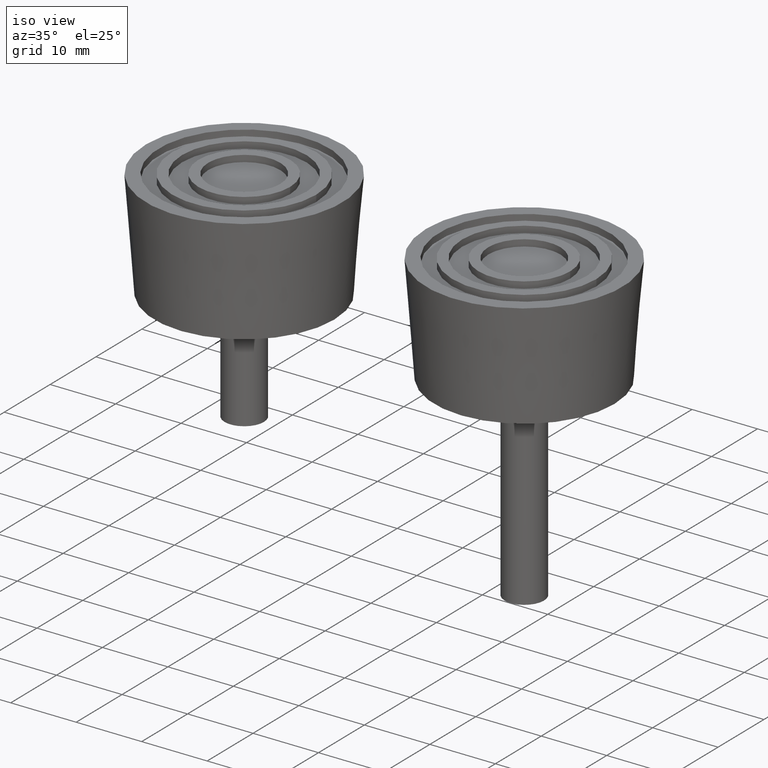
[diagram: clean part render]
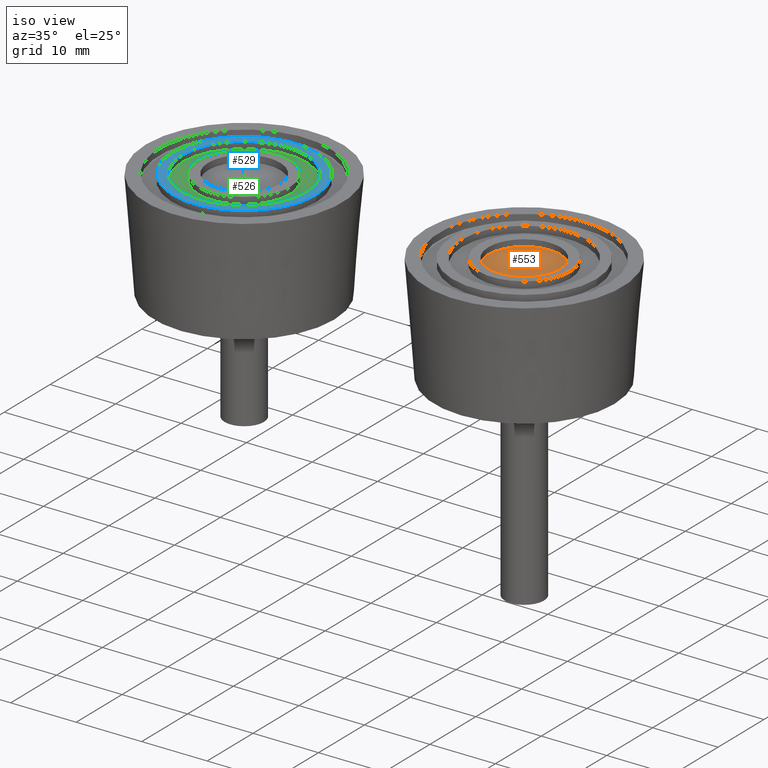
[diagram: same view with three faces highlighted in distinct colors, each labeled with its STEP entity id]
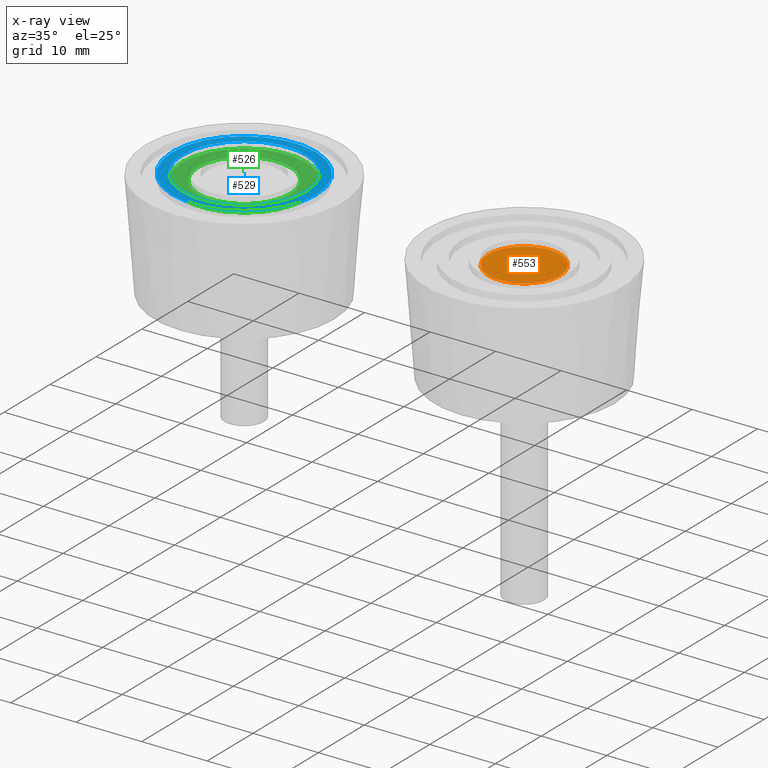
[diagram: x-ray of the same camera — body ghosted, the three highlighted faces saturated]
A machine part, iso view with three faces highlighted in distinct colors.
The next image is the same camera in x-ray (body ghosted, the three faces saturated) — at least one of them is partly hidden behind the body in this view.
Their STEP definitions:

[orange] entity #553 — the highlighted planar face has unit normal (0, -0, 1).
#50=PLANE('',#654);
#145=FACE_OUTER_BOUND('',#236,.T.);
#236=EDGE_LOOP('',(#476));
#292=CIRCLE('',#652,5.5);
#340=VERTEX_POINT('',#1006);
#388=EDGE_CURVE('',#340,#340,#292,.T.);
#476=ORIENTED_EDGE('',*,*,#388,.F.);
#553=ADVANCED_FACE('',(#145),#50,.T.);
#652=AXIS2_PLACEMENT_3D('',#1007,#846,#847);
#654=AXIS2_PLACEMENT_3D('',#1010,#850,#851);
#846=DIRECTION('center_axis',(0.,0.,-1.));
#847=DIRECTION('ref_axis',(-1.,0.,0.));
#850=DIRECTION('center_axis',(0.,0.,1.));
#851=DIRECTION('ref_axis',(1.,0.,0.));
#1006=CARTESIAN_POINT('',(5.5,6.73555739531044E-16,15.5));
#1007=CARTESIAN_POINT('Origin',(0.,0.,15.5));
#1010=CARTESIAN_POINT('Origin',(-2.24345254752611E-16,8.41078048958452E-17,
15.5));

[blue] entity #529 — the highlighted planar face has unit normal (0, 0, -1).
#38=PLANE('',#605);
#73=FACE_BOUND('',#190,.T.);
#121=FACE_OUTER_BOUND('',#189,.T.);
#189=EDGE_LOOP('',(#429));
#190=EDGE_LOOP('',(#430));
#261=CIRCLE('',#589,11.);
#267=CIRCLE('',#599,9.5);
#309=VERTEX_POINT('',#912);
#315=VERTEX_POINT('',#928);
#357=EDGE_CURVE('',#309,#309,#261,.T.);
#363=EDGE_CURVE('',#315,#315,#267,.T.);
#429=ORIENTED_EDGE('',*,*,#357,.T.);
#430=ORIENTED_EDGE('',*,*,#363,.T.);
#529=ADVANCED_FACE('',(#121,#73),#38,.F.);
#589=AXIS2_PLACEMENT_3D('',#913,#720,#721);
#599=AXIS2_PLACEMENT_3D('',#929,#740,#741);
#605=AXIS2_PLACEMENT_3D('',#937,#752,#753);
#720=DIRECTION('center_axis',(0.,0.,1.));
#721=DIRECTION('ref_axis',(-1.,0.,0.));
#740=DIRECTION('center_axis',(0.,0.,-1.));
#741=DIRECTION('ref_axis',(-1.,0.,0.));
#752=DIRECTION('center_axis',(0.,0.,-1.));
#753=DIRECTION('ref_axis',(-1.,0.,0.));
#912=CARTESIAN_POINT('',(11.,1.34711147906209E-15,16.5));
#913=CARTESIAN_POINT('Origin',(0.,0.,16.5));
#928=CARTESIAN_POINT('',(9.5,1.16341445918999E-15,16.5));
#929=CARTESIAN_POINT('Origin',(0.,0.,16.5));
#937=CARTESIAN_POINT('Origin',(0.,0.,16.5));

[green] entity #526 — the highlighted planar face has unit normal (-0, -0, 1).
#36=PLANE('',#600);
#71=FACE_BOUND('',#185,.T.);
#118=FACE_OUTER_BOUND('',#184,.T.);
#184=EDGE_LOOP('',(#424));
#185=EDGE_LOOP('',(#425));
#264=CIRCLE('',#595,7.);
#266=CIRCLE('',#598,9.5);
#312=VERTEX_POINT('',#921);
#314=VERTEX_POINT('',#926);
#360=EDGE_CURVE('',#312,#312,#264,.T.);
#362=EDGE_CURVE('',#314,#314,#266,.T.);
#424=ORIENTED_EDGE('',*,*,#362,.F.);
#425=ORIENTED_EDGE('',*,*,#360,.F.);
#526=ADVANCED_FACE('',(#118,#71),#36,.T.);
#595=AXIS2_PLACEMENT_3D('',#922,#732,#733);
#598=AXIS2_PLACEMENT_3D('',#927,#738,#739);
#600=AXIS2_PLACEMENT_3D('',#930,#742,#743);
#732=DIRECTION('center_axis',(0.,0.,1.));
#733=DIRECTION('ref_axis',(-1.,0.,0.));
#738=DIRECTION('center_axis',(0.,0.,-1.));
#739=DIRECTION('ref_axis',(-1.,0.,0.));
#742=DIRECTION('center_axis',(0.,0.,1.));
#743=DIRECTION('ref_axis',(1.,0.,0.));
#921=CARTESIAN_POINT('',(7.,8.57252759403147E-16,15.5));
#922=CARTESIAN_POINT('Origin',(0.,0.,15.5));
#926=CARTESIAN_POINT('',(9.5,1.16341445918999E-15,15.5));
#927=CARTESIAN_POINT('Origin',(0.,0.,15.5));
#930=CARTESIAN_POINT('Origin',(-4.86503143397466E-16,1.94775969232484E-16,
15.5));